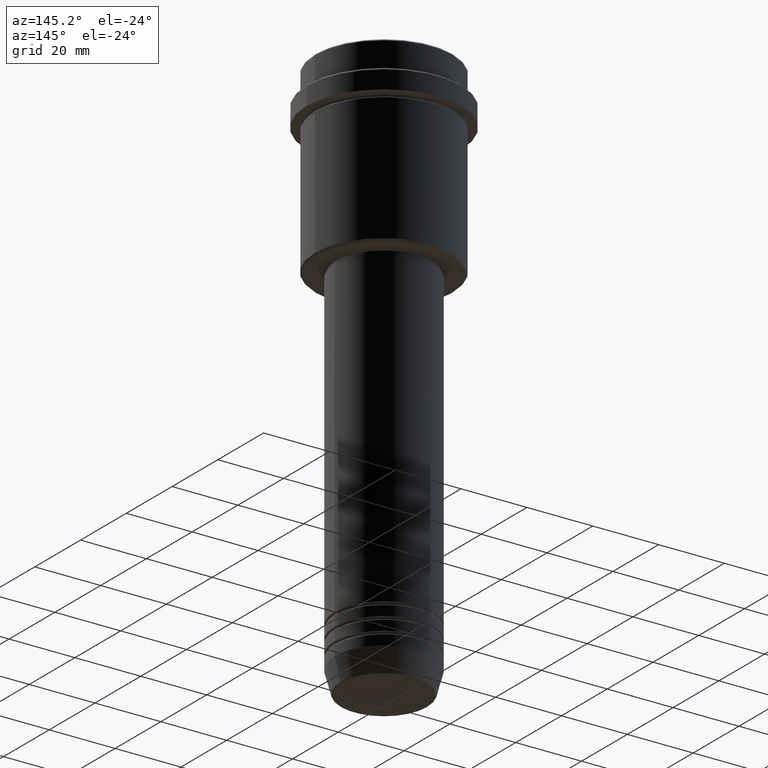
[diagram: clean part render]
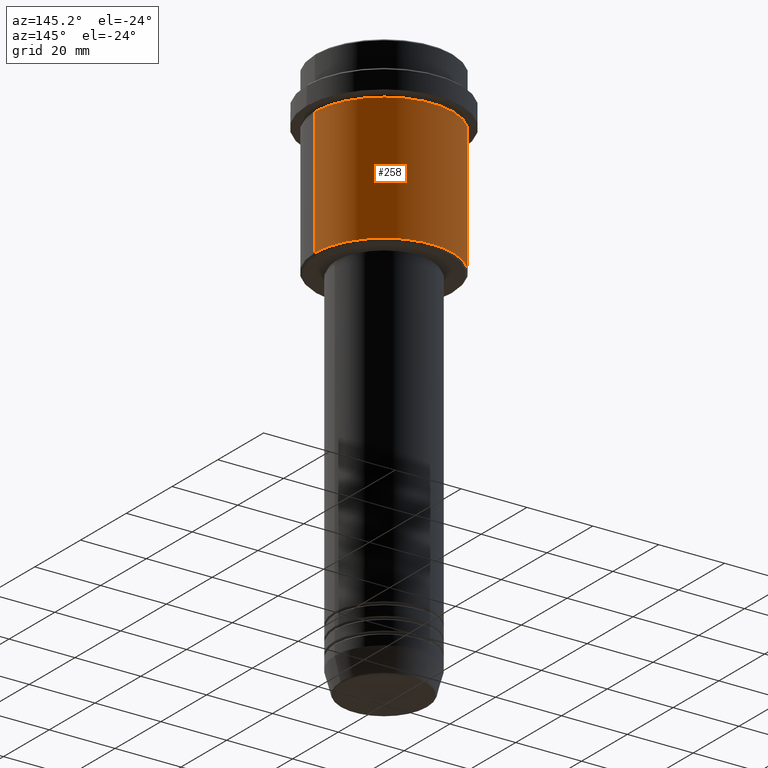
[diagram: same view with one face highlighted and labeled with its STEP entity id]
A machine part, auxiliary view. The second image highlights one B-rep face of the part: STEP entity #258.
In plain terms, the highlighted cylindrical surface (partial cylindrical patch) has radius 21 mm, axis along (-0, -0, 1).
Its self-contained STEP definition (entity closure, byte-faithful):
#27 = CARTESIAN_POINT ( 'NONE',  ( -20.99999999999999645, 2.571758278209441267E-15, -15.99999999999997691 ) ) ;
#44 = CARTESIAN_POINT ( 'NONE',  ( 0.000000000000000000, 0.000000000000000000, -15.99999999999997691 ) ) ;
#62 = AXIS2_PLACEMENT_3D ( 'NONE', #44, #593, #1122 ) ;
#100 = CARTESIAN_POINT ( 'NONE',  ( 0.000000000000000000, 0.000000000000000000, 0.000000000000000000 ) ) ;
#115 = CARTESIAN_POINT ( 'NONE',  ( 20.99999999999999645, 0.000000000000000000, -54.50000000000004974 ) ) ;
#189 = VERTEX_POINT ( 'NONE', #1380 ) ;
#227 = DIRECTION ( 'NONE',  ( -0.000000000000000000, -0.000000000000000000, 1.000000000000000000 ) ) ;
#229 = EDGE_LOOP ( 'NONE', ( #1029, #1120, #1187, #502 ) ) ;
#258 = ADVANCED_FACE ( 'NONE', ( #987 ), #649, .T. ) ;
#265 = AXIS2_PLACEMENT_3D ( 'NONE', #565, #227, #339 ) ;
#307 = EDGE_CURVE ( 'NONE', #833, #550, #559, .T. ) ;
#319 = DIRECTION ( 'NONE',  ( 1.000000000000000000, 0.000000000000000000, 0.000000000000000000 ) ) ;
#339 = DIRECTION ( 'NONE',  ( -1.000000000000000000, 0.000000000000000000, 0.000000000000000000 ) ) ;
#418 = AXIS2_PLACEMENT_3D ( 'NONE', #100, #428, #319 ) ;
#428 = DIRECTION ( 'NONE',  ( -0.000000000000000000, -0.000000000000000000, 1.000000000000000000 ) ) ;
#461 = VECTOR ( 'NONE', #887, 1000.000000000000000 ) ;
#485 = CIRCLE ( 'NONE', #62, 20.99999999999999645 ) ;
#491 = VERTEX_POINT ( 'NONE', #27 ) ;
#502 = ORIENTED_EDGE ( 'NONE', *, *, #1370, .F. ) ;
#549 = EDGE_CURVE ( 'NONE', #550, #491, #1280, .T. ) ;
#550 = VERTEX_POINT ( 'NONE', #742 ) ;
#559 = CIRCLE ( 'NONE', #265, 20.99999999999999645 ) ;
#565 = CARTESIAN_POINT ( 'NONE',  ( 0.000000000000000000, 0.000000000000000000, -54.50000000000004974 ) ) ;
#593 = DIRECTION ( 'NONE',  ( -0.000000000000000000, -0.000000000000000000, 1.000000000000000000 ) ) ;
#649 = CYLINDRICAL_SURFACE ( 'NONE', #418, 20.99999999999999645 ) ;
#696 = VECTOR ( 'NONE', #836, 1000.000000000000000 ) ;
#742 = CARTESIAN_POINT ( 'NONE',  ( -20.99999999999999645, 2.571758278209441267E-15, -54.50000000000004974 ) ) ;
#833 = VERTEX_POINT ( 'NONE', #115 ) ;
#836 = DIRECTION ( 'NONE',  ( -0.000000000000000000, -0.000000000000000000, 1.000000000000000000 ) ) ;
#887 = DIRECTION ( 'NONE',  ( -0.000000000000000000, -0.000000000000000000, 1.000000000000000000 ) ) ;
#891 = CARTESIAN_POINT ( 'NONE',  ( 20.99999999999999645, 0.000000000000000000, 0.000000000000000000 ) ) ;
#987 = FACE_OUTER_BOUND ( 'NONE', #229, .T. ) ;
#1029 = ORIENTED_EDGE ( 'NONE', *, *, #307, .T. ) ;
#1106 = LINE ( 'NONE', #891, #461 ) ;
#1120 = ORIENTED_EDGE ( 'NONE', *, *, #549, .T. ) ;
#1122 = DIRECTION ( 'NONE',  ( 1.000000000000000000, 0.000000000000000000, 0.000000000000000000 ) ) ;
#1187 = ORIENTED_EDGE ( 'NONE', *, *, #1415, .F. ) ;
#1264 = CARTESIAN_POINT ( 'NONE',  ( -20.99999999999999645, 2.571758278209441267E-15, 0.000000000000000000 ) ) ;
#1280 = LINE ( 'NONE', #1264, #696 ) ;
#1370 = EDGE_CURVE ( 'NONE', #833, #189, #1106, .T. ) ;
#1380 = CARTESIAN_POINT ( 'NONE',  ( 20.99999999999999645, 0.000000000000000000, -15.99999999999997691 ) ) ;
#1415 = EDGE_CURVE ( 'NONE', #189, #491, #485, .T. ) ;